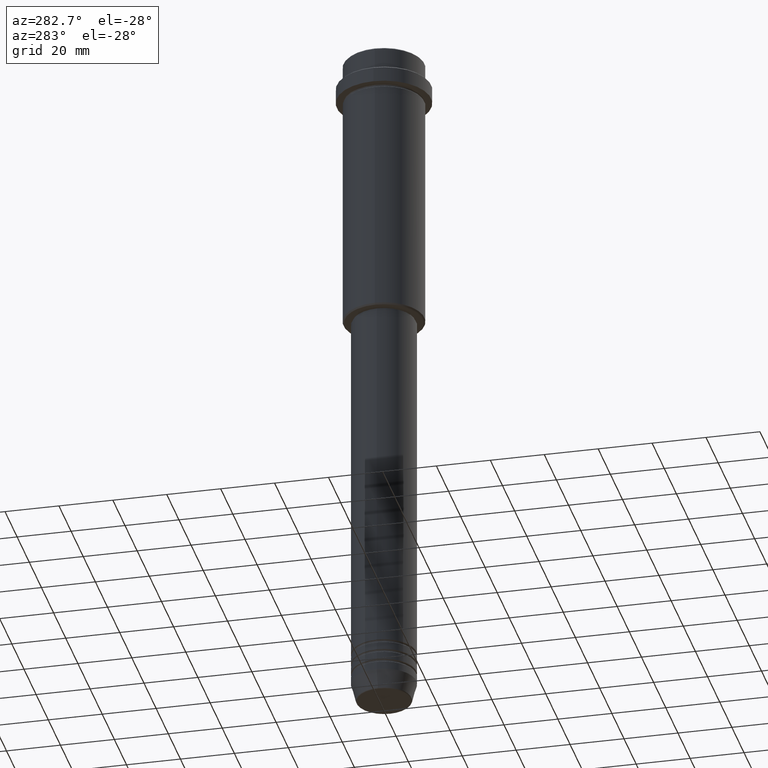
[diagram: clean part render]
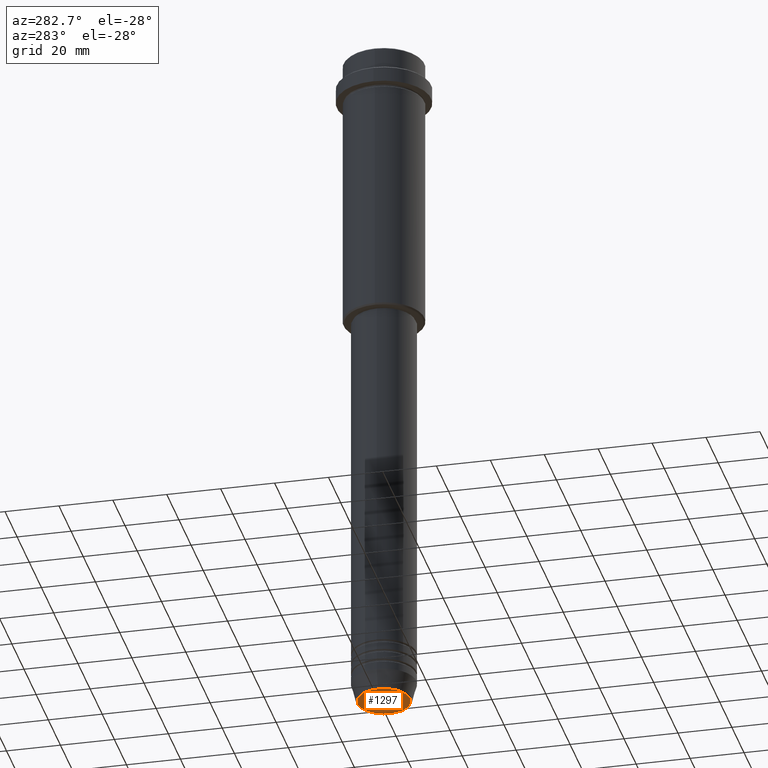
[diagram: same view with one face highlighted and labeled with its STEP entity id]
A machine part, auxiliary view. The second image highlights one B-rep face of the part: STEP entity #1297.
In plain terms, the highlighted planar face has unit normal (0, -0, 1).
Its self-contained STEP definition (entity closure, byte-faithful):
#11 = CARTESIAN_POINT ( 'NONE',  ( 9.740692158992658278, 0.000000000000000000, -260.0000000000000000 ) ) ;
#54 = CARTESIAN_POINT ( 'NONE',  ( -9.740692158992658278, 1.222463696683474999E-15, -260.0000000000000000 ) ) ;
#250 = CIRCLE ( 'NONE', #480, 9.740692158992658278 ) ;
#352 = AXIS2_PLACEMENT_3D ( 'NONE', #1417, #1332, #707 ) ;
#480 = AXIS2_PLACEMENT_3D ( 'NONE', #818, #482, #1337 ) ;
#482 = DIRECTION ( 'NONE',  ( 0.000000000000000000, 0.000000000000000000, -1.000000000000000000 ) ) ;
#706 = EDGE_LOOP ( 'NONE', ( #1243, #1306 ) ) ;
#707 = DIRECTION ( 'NONE',  ( 1.000000000000000000, 0.000000000000000000, 0.000000000000000000 ) ) ;
#711 = EDGE_CURVE ( 'NONE', #712, #1057, #1358, .T. ) ;
#712 = VERTEX_POINT ( 'NONE', #54 ) ;
#743 = CARTESIAN_POINT ( 'NONE',  ( 0.000000000000000000, 0.000000000000000000, -260.0000000000000000 ) ) ;
#751 = AXIS2_PLACEMENT_3D ( 'NONE', #743, #1075, #1045 ) ;
#818 = CARTESIAN_POINT ( 'NONE',  ( 0.000000000000000000, 0.000000000000000000, -260.0000000000000000 ) ) ;
#1045 = DIRECTION ( 'NONE',  ( 1.000000000000000000, 0.000000000000000000, 0.000000000000000000 ) ) ;
#1057 = VERTEX_POINT ( 'NONE', #11 ) ;
#1075 = DIRECTION ( 'NONE',  ( 0.000000000000000000, -0.000000000000000000, 1.000000000000000000 ) ) ;
#1182 = FACE_OUTER_BOUND ( 'NONE', #706, .T. ) ;
#1216 = EDGE_CURVE ( 'NONE', #1057, #712, #250, .T. ) ;
#1243 = ORIENTED_EDGE ( 'NONE', *, *, #1216, .T. ) ;
#1297 = ADVANCED_FACE ( 'NONE', ( #1182 ), #1377, .F. ) ;
#1306 = ORIENTED_EDGE ( 'NONE', *, *, #711, .T. ) ;
#1332 = DIRECTION ( 'NONE',  ( 0.000000000000000000, 0.000000000000000000, -1.000000000000000000 ) ) ;
#1337 = DIRECTION ( 'NONE',  ( 1.000000000000000000, 0.000000000000000000, 0.000000000000000000 ) ) ;
#1358 = CIRCLE ( 'NONE', #352, 9.740692158992658278 ) ;
#1377 = PLANE ( 'NONE',  #751 ) ;
#1417 = CARTESIAN_POINT ( 'NONE',  ( 0.000000000000000000, 0.000000000000000000, -260.0000000000000000 ) ) ;